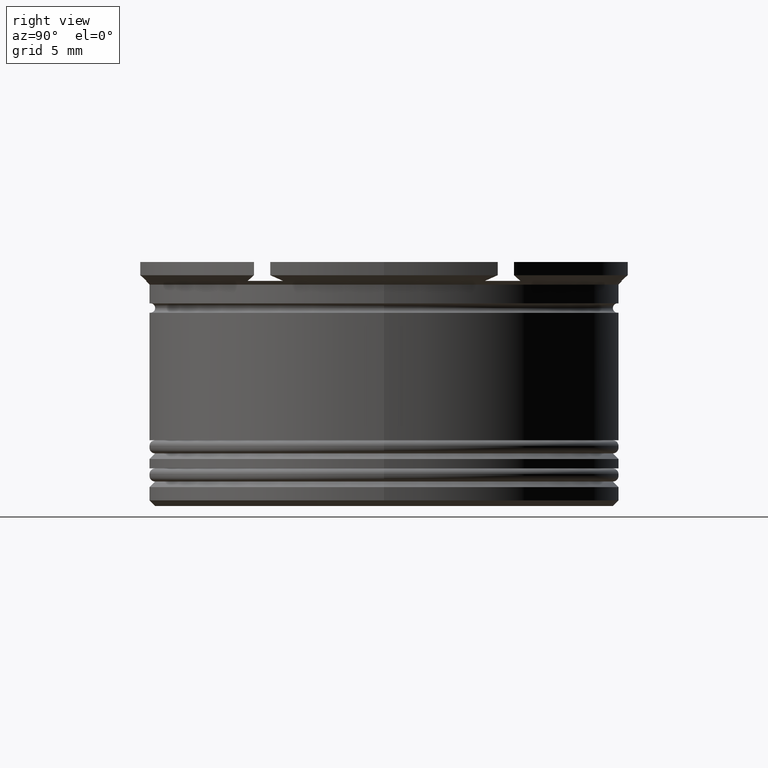
[diagram: clean part render]
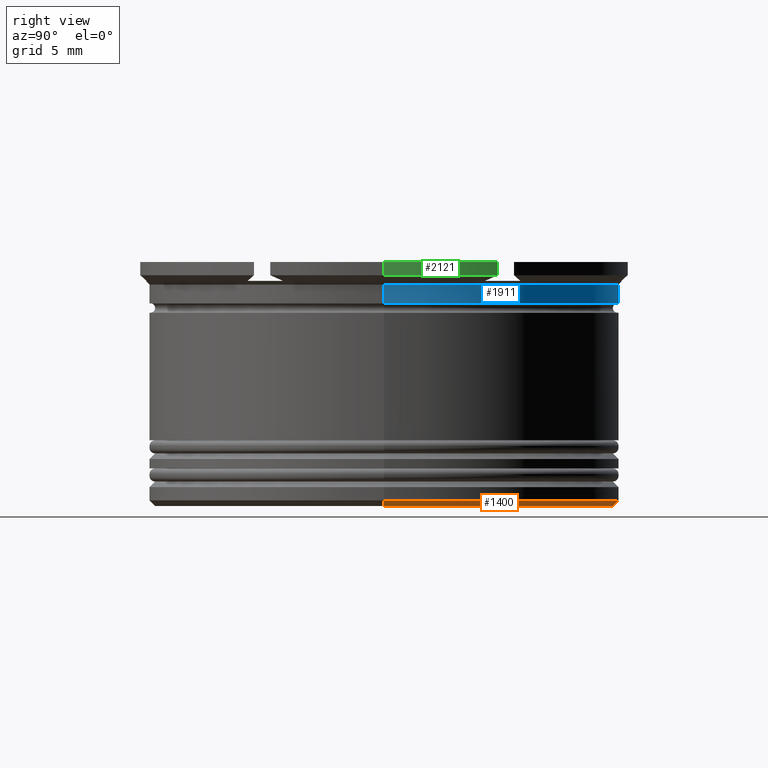
[diagram: same view with three faces highlighted in distinct colors, each labeled with its STEP entity id]
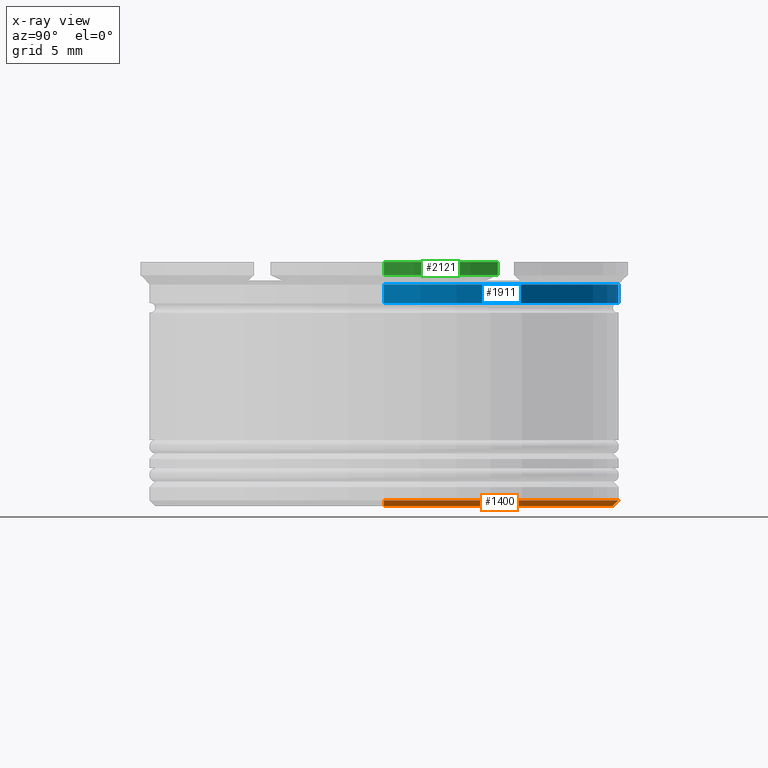
[diagram: x-ray of the same camera — body ghosted, the three highlighted faces saturated]
A machine part, right view with three faces highlighted in distinct colors.
The next image is the same camera in x-ray (body ghosted, the three faces saturated) — at least one of them is partly hidden behind the body in this view.
Their STEP definitions:

[orange] entity #1400 — the highlighted conical surface has half-angle 45 deg.
#28 = CARTESIAN_POINT ( 'NONE',  ( 12.50000000000000000, 0.000000000000000000, -12.70000000000000462 ) ) ;
#137 = ORIENTED_EDGE ( 'NONE', *, *, #1726, .F. ) ;
#151 = DIRECTION ( 'NONE',  ( -1.000000000000000000, 0.000000000000000000, 0.000000000000000000 ) ) ;
#196 = VERTEX_POINT ( 'NONE', #473 ) ;
#258 = CONICAL_SURFACE ( 'NONE', #525, 12.50000000000000000, 0.7853981633974511656 ) ;
#412 = DIRECTION ( 'NONE',  ( 0.7071067811865495711, 0.000000000000000000, 0.7071067811865455743 ) ) ;
#424 = VERTEX_POINT ( 'NONE', #1962 ) ;
#473 = CARTESIAN_POINT ( 'NONE',  ( -12.50000000000000000, 1.530808498934191521E-15, -12.70000000000000462 ) ) ;
#487 = CIRCLE ( 'NONE', #2289, 12.50000000000000000 ) ;
#490 = VECTOR ( 'NONE', #1800, 1000.000000000000114 ) ;
#525 = AXIS2_PLACEMENT_3D ( 'NONE', #2078, #578, #959 ) ;
#535 = EDGE_CURVE ( 'NONE', #1982, #196, #487, .T. ) ;
#569 = CARTESIAN_POINT ( 'NONE',  ( 0.000000000000000000, 0.000000000000000000, -12.70000000000000462 ) ) ;
#578 = DIRECTION ( 'NONE',  ( -0.000000000000000000, -0.000000000000000000, 1.000000000000000000 ) ) ;
#703 = EDGE_LOOP ( 'NONE', ( #1730, #2283, #1809, #137 ) ) ;
#746 = DIRECTION ( 'NONE',  ( -0.000000000000000000, -0.000000000000000000, 1.000000000000000000 ) ) ;
#752 = FACE_OUTER_BOUND ( 'NONE', #703, .T. ) ;
#934 = EDGE_CURVE ( 'NONE', #1966, #196, #1096, .T. ) ;
#959 = DIRECTION ( 'NONE',  ( 1.000000000000000000, 0.000000000000000000, 0.000000000000000000 ) ) ;
#998 = EDGE_CURVE ( 'NONE', #1966, #424, #1516, .T. ) ;
#1096 = LINE ( 'NONE', #2194, #490 ) ;
#1271 = VECTOR ( 'NONE', #412, 1000.000000000000114 ) ;
#1400 = ADVANCED_FACE ( 'NONE', ( #752 ), #258, .T. ) ;
#1516 = CIRCLE ( 'NONE', #2255, 12.20000000000000284 ) ;
#1726 = EDGE_CURVE ( 'NONE', #424, #1982, #2243, .T. ) ;
#1730 = ORIENTED_EDGE ( 'NONE', *, *, #998, .F. ) ;
#1754 = DIRECTION ( 'NONE',  ( -1.000000000000000000, 0.000000000000000000, 0.000000000000000000 ) ) ;
#1767 = CARTESIAN_POINT ( 'NONE',  ( 0.000000000000000000, 0.000000000000000000, -13.00000000000000178 ) ) ;
#1800 = DIRECTION ( 'NONE',  ( -0.7071067811865495711, 8.659560562354957510E-17, 0.7071067811865455743 ) ) ;
#1809 = ORIENTED_EDGE ( 'NONE', *, *, #535, .F. ) ;
#1962 = CARTESIAN_POINT ( 'NONE',  ( 12.20000000000000284, 0.000000000000000000, -13.00000000000000178 ) ) ;
#1966 = VERTEX_POINT ( 'NONE', #2219 ) ;
#1982 = VERTEX_POINT ( 'NONE', #28 ) ;
#2078 = CARTESIAN_POINT ( 'NONE',  ( 0.000000000000000000, 0.000000000000000000, -12.70000000000000462 ) ) ;
#2123 = DIRECTION ( 'NONE',  ( 0.000000000000000000, 0.000000000000000000, -1.000000000000000000 ) ) ;
#2194 = CARTESIAN_POINT ( 'NONE',  ( -12.50000000000000000, 1.530808498934191521E-15, -12.70000000000000462 ) ) ;
#2219 = CARTESIAN_POINT ( 'NONE',  ( -12.20000000000000284, 1.512438796946981486E-15, -13.00000000000000178 ) ) ;
#2243 = LINE ( 'NONE', #2385, #1271 ) ;
#2255 = AXIS2_PLACEMENT_3D ( 'NONE', #1767, #2123, #1754 ) ;
#2283 = ORIENTED_EDGE ( 'NONE', *, *, #934, .T. ) ;
#2289 = AXIS2_PLACEMENT_3D ( 'NONE', #569, #746, #151 ) ;
#2385 = CARTESIAN_POINT ( 'NONE',  ( 12.50000000000000000, 0.000000000000000000, -12.70000000000000462 ) ) ;

[blue] entity #1911 — the highlighted cylindrical surface (partial cylindrical patch) has radius 12.5 mm, axis along (-0, -0, 1).
#42 = CARTESIAN_POINT ( 'NONE',  ( 12.49999999999999645, 0.000000000000000000, -1.199999999999998845 ) ) ;
#97 = AXIS2_PLACEMENT_3D ( 'NONE', #135, #459, #2307 ) ;
#135 = CARTESIAN_POINT ( 'NONE',  ( 0.000000000000000000, 0.000000000000000000, -2.199999999999999734 ) ) ;
#192 = LINE ( 'NONE', #2052, #1518 ) ;
#366 = DIRECTION ( 'NONE',  ( 1.000000000000000000, 0.000000000000000000, 0.000000000000000000 ) ) ;
#459 = DIRECTION ( 'NONE',  ( -0.000000000000000000, -0.000000000000000000, 1.000000000000000000 ) ) ;
#491 = CIRCLE ( 'NONE', #1820, 12.49999999999999645 ) ;
#540 = CARTESIAN_POINT ( 'NONE',  ( 0.000000000000000000, 0.000000000000000000, 0.000000000000000000 ) ) ;
#672 = EDGE_CURVE ( 'NONE', #1091, #1217, #964, .T. ) ;
#779 = CARTESIAN_POINT ( 'NONE',  ( 0.000000000000000000, 0.000000000000000000, -1.199999999999998845 ) ) ;
#818 = CARTESIAN_POINT ( 'NONE',  ( -12.49999999999999645, 1.530808498934191127E-15, -2.199999999999999734 ) ) ;
#964 = CIRCLE ( 'NONE', #97, 12.49999999999999645 ) ;
#1065 = ORIENTED_EDGE ( 'NONE', *, *, #1427, .T. ) ;
#1091 = VERTEX_POINT ( 'NONE', #1134 ) ;
#1134 = CARTESIAN_POINT ( 'NONE',  ( 12.49999999999999645, 0.000000000000000000, -2.199999999999999734 ) ) ;
#1151 = DIRECTION ( 'NONE',  ( -0.000000000000000000, -0.000000000000000000, 1.000000000000000000 ) ) ;
#1208 = CARTESIAN_POINT ( 'NONE',  ( 12.49999999999999645, 0.000000000000000000, 0.000000000000000000 ) ) ;
#1217 = VERTEX_POINT ( 'NONE', #818 ) ;
#1332 = VERTEX_POINT ( 'NONE', #1887 ) ;
#1364 = EDGE_LOOP ( 'NONE', ( #2383, #1065, #1913, #1436 ) ) ;
#1396 = DIRECTION ( 'NONE',  ( -0.000000000000000000, -0.000000000000000000, 1.000000000000000000 ) ) ;
#1427 = EDGE_CURVE ( 'NONE', #1217, #1332, #192, .T. ) ;
#1436 = ORIENTED_EDGE ( 'NONE', *, *, #2008, .F. ) ;
#1438 = FACE_OUTER_BOUND ( 'NONE', #1364, .T. ) ;
#1442 = EDGE_CURVE ( 'NONE', #2371, #1332, #491, .T. ) ;
#1493 = AXIS2_PLACEMENT_3D ( 'NONE', #540, #2007, #366 ) ;
#1518 = VECTOR ( 'NONE', #1151, 1000.000000000000000 ) ;
#1561 = VECTOR ( 'NONE', #1396, 1000.000000000000000 ) ;
#1602 = CYLINDRICAL_SURFACE ( 'NONE', #1493, 12.49999999999999645 ) ;
#1683 = DIRECTION ( 'NONE',  ( 1.000000000000000000, 0.000000000000000000, 0.000000000000000000 ) ) ;
#1820 = AXIS2_PLACEMENT_3D ( 'NONE', #779, #1858, #1683 ) ;
#1858 = DIRECTION ( 'NONE',  ( -0.000000000000000000, -0.000000000000000000, 1.000000000000000000 ) ) ;
#1887 = CARTESIAN_POINT ( 'NONE',  ( -12.49999999999999645, 1.530808498934191127E-15, -1.199999999999998845 ) ) ;
#1911 = ADVANCED_FACE ( 'NONE', ( #1438 ), #1602, .T. ) ;
#1913 = ORIENTED_EDGE ( 'NONE', *, *, #1442, .F. ) ;
#2007 = DIRECTION ( 'NONE',  ( -0.000000000000000000, -0.000000000000000000, 1.000000000000000000 ) ) ;
#2008 = EDGE_CURVE ( 'NONE', #1091, #2371, #2299, .T. ) ;
#2052 = CARTESIAN_POINT ( 'NONE',  ( -12.49999999999999645, 1.530808498934191127E-15, 0.000000000000000000 ) ) ;
#2299 = LINE ( 'NONE', #1208, #1561 ) ;
#2307 = DIRECTION ( 'NONE',  ( 1.000000000000000000, 0.000000000000000000, 0.000000000000000000 ) ) ;
#2371 = VERTEX_POINT ( 'NONE', #42 ) ;
#2383 = ORIENTED_EDGE ( 'NONE', *, *, #672, .T. ) ;

[green] entity #2121 — the highlighted cylindrical surface (partial cylindrical patch) has radius 13 mm, axis along (-0, -0, 1).
#5 = EDGE_CURVE ( 'NONE', #320, #1369, #1413, .T. ) ;
#67 = CARTESIAN_POINT ( 'NONE',  ( 12.99999999999999822, 0.000000000000000000, 0.000000000000000000 ) ) ;
#155 = DIRECTION ( 'NONE',  ( -0.000000000000000000, -0.000000000000000000, 1.000000000000000000 ) ) ;
#180 = CARTESIAN_POINT ( 'NONE',  ( 0.000000000000000000, 0.000000000000000000, 0.000000000000000000 ) ) ;
#227 = CARTESIAN_POINT ( 'NONE',  ( 0.000000000000000000, 0.000000000000000000, -0.7000000000000018430 ) ) ;
#237 = CARTESIAN_POINT ( 'NONE',  ( 11.50000000000000000, 6.062177826491065957, -0.7000000000000016209 ) ) ;
#239 = CARTESIAN_POINT ( 'NONE',  ( 11.50000000000000000, 6.062177826491065957, 0.000000000000000000 ) ) ;
#240 = DIRECTION ( 'NONE',  ( -1.000000000000000000, 0.000000000000000000, 0.000000000000000000 ) ) ;
#320 = VERTEX_POINT ( 'NONE', #67 ) ;
#349 = CIRCLE ( 'NONE', #978, 12.99999999999999822 ) ;
#355 = CARTESIAN_POINT ( 'NONE',  ( 12.99999999999999822, 0.000000000000000000, 0.000000000000000000 ) ) ;
#402 = LINE ( 'NONE', #647, #722 ) ;
#416 = VECTOR ( 'NONE', #155, 1000.000000000000000 ) ;
#498 = ORIENTED_EDGE ( 'NONE', *, *, #2124, .F. ) ;
#515 = VERTEX_POINT ( 'NONE', #930 ) ;
#621 = CYLINDRICAL_SURFACE ( 'NONE', #1709, 12.99999999999999822 ) ;
#647 = CARTESIAN_POINT ( 'NONE',  ( 11.50000000000000000, 6.062177826491065957, 0.000000000000000000 ) ) ;
#722 = VECTOR ( 'NONE', #1891, 1000.000000000000000 ) ;
#894 = LINE ( 'NONE', #355, #416 ) ;
#915 = DIRECTION ( 'NONE',  ( -0.000000000000000000, -0.000000000000000000, 1.000000000000000000 ) ) ;
#930 = CARTESIAN_POINT ( 'NONE',  ( 12.99999999999999822, 0.000000000000000000, -0.7000000000000018430 ) ) ;
#978 = AXIS2_PLACEMENT_3D ( 'NONE', #227, #1728, #240 ) ;
#987 = DIRECTION ( 'NONE',  ( 1.000000000000000000, 0.000000000000000000, 0.000000000000000000 ) ) ;
#999 = DIRECTION ( 'NONE',  ( -0.000000000000000000, -0.000000000000000000, 1.000000000000000000 ) ) ;
#1369 = VERTEX_POINT ( 'NONE', #239 ) ;
#1413 = CIRCLE ( 'NONE', #1691, 12.99999999999999822 ) ;
#1525 = ORIENTED_EDGE ( 'NONE', *, *, #1584, .F. ) ;
#1530 = CARTESIAN_POINT ( 'NONE',  ( 0.000000000000000000, 0.000000000000000000, 0.000000000000000000 ) ) ;
#1584 = EDGE_CURVE ( 'NONE', #515, #320, #894, .T. ) ;
#1618 = EDGE_LOOP ( 'NONE', ( #1525, #2003, #498, #2336 ) ) ;
#1691 = AXIS2_PLACEMENT_3D ( 'NONE', #180, #915, #2351 ) ;
#1709 = AXIS2_PLACEMENT_3D ( 'NONE', #1530, #999, #987 ) ;
#1728 = DIRECTION ( 'NONE',  ( -0.000000000000000000, -0.000000000000000000, 1.000000000000000000 ) ) ;
#1863 = FACE_OUTER_BOUND ( 'NONE', #1618, .T. ) ;
#1891 = DIRECTION ( 'NONE',  ( 0.000000000000000000, 0.000000000000000000, -1.000000000000000000 ) ) ;
#2003 = ORIENTED_EDGE ( 'NONE', *, *, #2333, .T. ) ;
#2115 = VERTEX_POINT ( 'NONE', #237 ) ;
#2121 = ADVANCED_FACE ( 'NONE', ( #1863 ), #621, .T. ) ;
#2124 = EDGE_CURVE ( 'NONE', #1369, #2115, #402, .T. ) ;
#2333 = EDGE_CURVE ( 'NONE', #515, #2115, #349, .T. ) ;
#2336 = ORIENTED_EDGE ( 'NONE', *, *, #5, .F. ) ;
#2351 = DIRECTION ( 'NONE',  ( 1.000000000000000000, 0.000000000000000000, 0.000000000000000000 ) ) ;